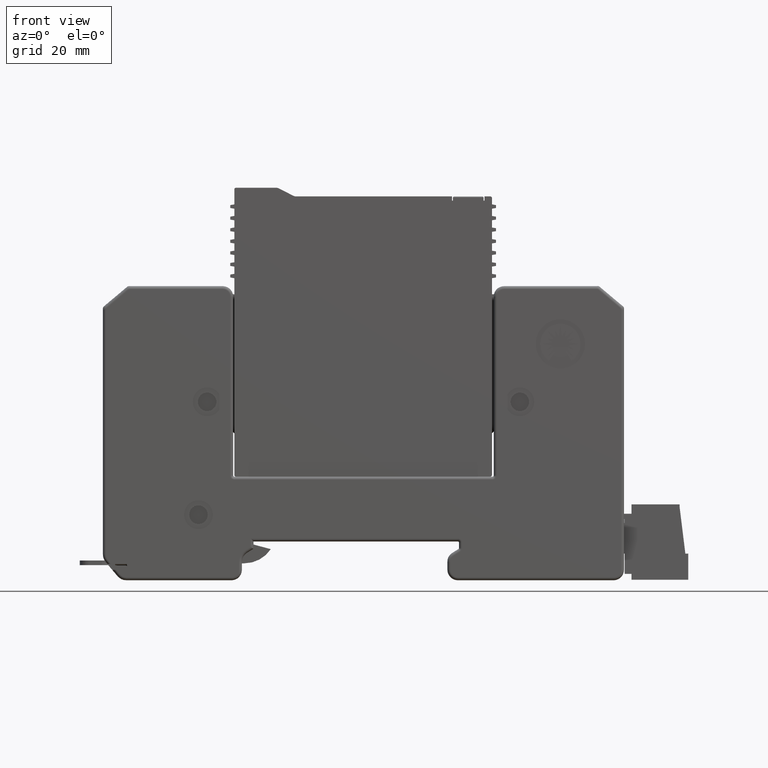
[diagram: clean part render]
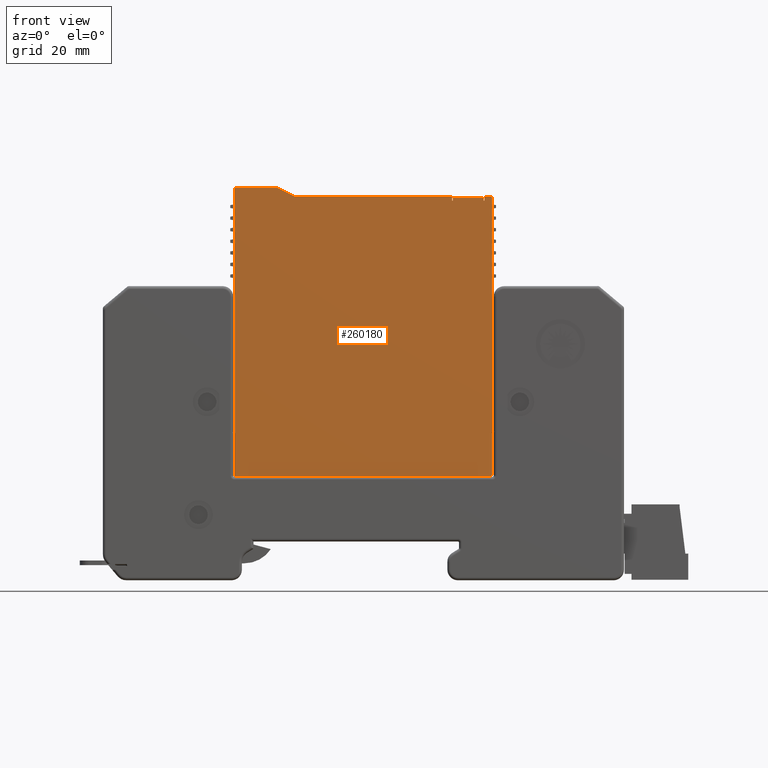
[diagram: same view with one face highlighted and labeled with its STEP entity id]
A machine part, front view. The second image highlights one B-rep face of the part: STEP entity #260180.
In plain terms, the highlighted planar face has unit normal (-0, 1, -0).
Its self-contained STEP definition (entity closure, byte-faithful):
#247920=CARTESIAN_POINT('',(-194.207462,928.111242401068,
75.4128696049984));
#247930=VERTEX_POINT('',#247920);
#247980=CARTESIAN_POINT('',(-194.207462,928.111242401068,
34.5536390928357));
#247990=DIRECTION('',(0.,0.,-1.));
#248000=VECTOR('',#247990,1.);
#248010=LINE('',#247980,#248000);
#248020=CARTESIAN_POINT('',(-194.207462,928.111242401068,
26.1128696049982));
#248030=VERTEX_POINT('',#248020);
#248040=EDGE_CURVE('',#247930,#248030,#248010,.T.);
#257270=CARTESIAN_POINT('',(-156.457462,928.111242401068,
73.9916616049981));
#257280=VERTEX_POINT('',#257270);
#257310=CARTESIAN_POINT('',(-156.457462,928.111242401068,
72.5916616049981));
#257320=DIRECTION('',(0.,6.12323399573677E-17,1.));
#257330=VECTOR('',#257320,1.);
#257340=LINE('',#257310,#257330);
#257350=CARTESIAN_POINT('',(-156.457462,928.111242401068,
73.4828696049982));
#257360=VERTEX_POINT('',#257350);
#257370=EDGE_CURVE('',#257360,#257280,#257340,.T.);
#257530=CARTESIAN_POINT('',(-211.508455648833,928.111242401068,
73.4828696049982));
#257540=DIRECTION('',(1.,1.22464658788737E-16,-1.23259516440783E-32));
#257550=VECTOR('',#257540,1.);
#257560=LINE('',#257530,#257550);
#257570=CARTESIAN_POINT('',(-156.607462,928.111242401068,
73.4828696049982));
#257580=VERTEX_POINT('',#257570);
#257590=EDGE_CURVE('',#257580,#257360,#257560,.T.);
#257790=CARTESIAN_POINT('',(-156.607462,928.111242401068,
34.5536390928357));
#257800=DIRECTION('',(0.,0.,-1.));
#257810=VECTOR('',#257800,1.);
#257820=LINE('',#257790,#257810);
#257830=CARTESIAN_POINT('',(-156.607462,928.111242401068,74.212869604998
));
#257840=VERTEX_POINT('',#257830);
#257850=EDGE_CURVE('',#257840,#257580,#257820,.T.);
#258020=CARTESIAN_POINT('',(-211.508455648833,928.111242401068,
74.2128696049977));
#258030=DIRECTION('',(-1.,-0.,-6.77715873154194E-15));
#258040=VECTOR('',#258030,1.);
#258050=LINE('',#258020,#258040);
#258060=CARTESIAN_POINT('',(-183.557462,928.111242401068,
74.2128696049978));
#258070=VERTEX_POINT('',#258060);
#258080=EDGE_CURVE('',#257840,#258070,#258050,.T.);
#258260=CARTESIAN_POINT('',(-183.557462000001,928.111242401068,
75.2628696049985));
#258270=DIRECTION('',(0.,1.,0.));
#258280=DIRECTION('',(-1.,0.,0.));
#258290=AXIS2_PLACEMENT_3D('',#258260,#258270,#258280);
#258300=CIRCLE('',#258290,1.05000000000064);
#258310=CARTESIAN_POINT('',(-184.033861128244,928.111242401068,
74.3271645923956));
#258320=VERTEX_POINT('',#258310);
#258330=EDGE_CURVE('',#258070,#258320,#258300,.T.);
#258510=CARTESIAN_POINT('',(-211.508455648833,928.111242401068,
88.3154116383822));
#258520=DIRECTION('',(-0.891147631049758,0.,0.453713455469864));
#258530=VECTOR('',#258520,1.);
#258540=LINE('',#258510,#258530);
#258550=CARTESIAN_POINT('',(-186.531062871756,928.111242401068,
75.5985746176006));
#258560=VERTEX_POINT('',#258550);
#258570=EDGE_CURVE('',#258320,#258560,#258540,.T.);
#258750=CARTESIAN_POINT('',(-187.007462,928.111242401068,
74.6628696049981));
#258760=DIRECTION('',(0.,1.,0.));
#258770=DIRECTION('',(-1.,0.,0.));
#258780=AXIS2_PLACEMENT_3D('',#258750,#258760,#258770);
#258790=CIRCLE('',#258780,1.0500000000003);
#258800=CARTESIAN_POINT('',(-187.007462,928.111242401068,
75.7128696049984));
#258810=VERTEX_POINT('',#258800);
#258820=EDGE_CURVE('',#258810,#258560,#258790,.T.);
#259000=CARTESIAN_POINT('',(-188.832462,928.111242401068,
75.7128696049983));
#259010=DIRECTION('',(-1.,-1.22464658788737E-16,-1.66533453693773E-16));
#259020=VECTOR('',#259010,1.);
#259030=LINE('',#259000,#259020);
#259040=CARTESIAN_POINT('',(-193.907462,928.111242401068,
75.7128696049985));
#259050=VERTEX_POINT('',#259040);
#259060=EDGE_CURVE('',#258810,#259050,#259030,.T.);
#259180=CARTESIAN_POINT('',(-199.170350235239,928.111242401068,
60.8816108599726));
#259190=DIRECTION('',(-1.22464658788737E-16,1.,-6.12323399573677E-17));
#259200=DIRECTION('',(-0.780975737252073,-1.33885280970231E-16,
-0.62456136433787));
#259210=AXIS2_PLACEMENT_3D('',#259180,#259190,#259200);
#259220=PLANE('',#259210);
#259230=CARTESIAN_POINT('',(-151.007462,928.111242401068,
34.5536390928357));
#259240=DIRECTION('',(0.,6.12323399573677E-17,1.));
#259250=VECTOR('',#259240,1.);
#259260=LINE('',#259230,#259250);
#259270=CARTESIAN_POINT('',(-151.007462,928.111242401068,
73.4828696049982));
#259280=VERTEX_POINT('',#259270);
#259290=CARTESIAN_POINT('',(-151.007462,928.111242401068,
74.2128696049981));
#259300=VERTEX_POINT('',#259290);
#259310=EDGE_CURVE('',#259280,#259300,#259260,.T.);
#259320=ORIENTED_EDGE('',*,*,#259310,.F.);
#259330=CARTESIAN_POINT('',(-211.508455648833,928.111242401068,
74.2128696049977));
#259340=DIRECTION('',(-1.,-0.,-6.77715873154194E-15));
#259350=VECTOR('',#259340,1.);
#259360=LINE('',#259330,#259350);
#259370=CARTESIAN_POINT('',(-150.007462,928.111242401068,
74.2128696049981));
#259380=VERTEX_POINT('',#259370);
#259390=EDGE_CURVE('',#259380,#259300,#259360,.T.);
#259400=ORIENTED_EDGE('',*,*,#259390,.T.);
#259410=CARTESIAN_POINT('',(-150.007462,928.111242401068,
73.9128696049981));
#259420=DIRECTION('',(0.,1.,0.));
#259430=DIRECTION('',(-1.,0.,0.));
#259440=AXIS2_PLACEMENT_3D('',#259410,#259420,#259430);
#259450=CIRCLE('',#259440,0.299999999999926);
#259460=CARTESIAN_POINT('',(-149.707462,928.111242401068,
73.9128696049981));
#259470=VERTEX_POINT('',#259460);
#259480=EDGE_CURVE('',#259380,#259470,#259450,.T.);
#259490=ORIENTED_EDGE('',*,*,#259480,.F.);
#259500=CARTESIAN_POINT('',(-149.707462,928.111242401068,
34.5536390928357));
#259510=DIRECTION('',(0.,0.,1.));
#259520=VECTOR('',#259510,1.);
#259530=LINE('',#259500,#259520);
#259540=CARTESIAN_POINT('',(-149.707462,928.111242401068,
26.1128696049982));
#259550=VERTEX_POINT('',#259540);
#259560=EDGE_CURVE('',#259550,#259470,#259530,.T.);
#259570=ORIENTED_EDGE('',*,*,#259560,.T.);
#259580=CARTESIAN_POINT('',(-150.007462,928.111242401068,
26.1128696049982));
#259590=DIRECTION('',(0.,1.,0.));
#259600=DIRECTION('',(-1.,0.,0.));
#259610=AXIS2_PLACEMENT_3D('',#259580,#259590,#259600);
#259620=CIRCLE('',#259610,0.299999999999983);
#259630=CARTESIAN_POINT('',(-150.007462,928.111242401068,
25.8128696049982));
#259640=VERTEX_POINT('',#259630);
#259650=EDGE_CURVE('',#259550,#259640,#259620,.T.);
#259660=ORIENTED_EDGE('',*,*,#259650,.F.);
#259670=CARTESIAN_POINT('',(-211.508455648833,928.111242401068,
25.8128696049982));
#259680=DIRECTION('',(-1.,0.,0.));
#259690=VECTOR('',#259680,1.);
#259700=LINE('',#259670,#259690);
#259710=CARTESIAN_POINT('',(-193.907462,928.111242401068,
25.8128696049982));
#259720=VERTEX_POINT('',#259710);
#259730=EDGE_CURVE('',#259640,#259720,#259700,.T.);
#259740=ORIENTED_EDGE('',*,*,#259730,.F.);
#259750=CARTESIAN_POINT('',(-193.907462,928.111242401068,
26.1128696049982));
#259760=DIRECTION('',(0.,1.,0.));
#259770=DIRECTION('',(-1.,0.,0.));
#259780=AXIS2_PLACEMENT_3D('',#259750,#259760,#259770);
#259790=CIRCLE('',#259780,0.299999999999962);
#259800=EDGE_CURVE('',#259720,#248030,#259790,.T.);
#259810=ORIENTED_EDGE('',*,*,#259800,.F.);
#259820=ORIENTED_EDGE('',*,*,#248040,.T.);
#259830=CARTESIAN_POINT('',(-193.907462,928.111242401068,
75.4128696049984));
#259840=DIRECTION('',(0.,1.,0.));
#259850=DIRECTION('',(-1.,0.,0.));
#259860=AXIS2_PLACEMENT_3D('',#259830,#259840,#259850);
#259870=CIRCLE('',#259860,0.300000000000011);
#259880=EDGE_CURVE('',#247930,#259050,#259870,.T.);
#259890=ORIENTED_EDGE('',*,*,#259880,.F.);
#259900=ORIENTED_EDGE('',*,*,#259060,.T.);
#259910=ORIENTED_EDGE('',*,*,#258820,.F.);
#259920=ORIENTED_EDGE('',*,*,#258570,.T.);
#259930=ORIENTED_EDGE('',*,*,#258330,.T.);
#259940=ORIENTED_EDGE('',*,*,#258080,.T.);
#259950=ORIENTED_EDGE('',*,*,#257850,.F.);
#259960=ORIENTED_EDGE('',*,*,#257590,.F.);
#259970=ORIENTED_EDGE('',*,*,#257370,.F.);
#259980=CARTESIAN_POINT('',(-211.508455648833,928.111242401068,
73.9916616049981));
#259990=DIRECTION('',(-1.,-1.22464658788737E-16,1.23259516440783E-32));
#260000=VECTOR('',#259990,1.);
#260010=LINE('',#259980,#260000);
#260020=CARTESIAN_POINT('',(-151.157462,928.111242401068,
73.9916616049981));
#260030=VERTEX_POINT('',#260020);
#260040=EDGE_CURVE('',#260030,#257280,#260010,.T.);
#260050=ORIENTED_EDGE('',*,*,#260040,.T.);
#260060=CARTESIAN_POINT('',(-151.157462,928.111242401068,
34.5536390928357));
#260070=DIRECTION('',(0.,-6.12323399573677E-17,-1.));
#260080=VECTOR('',#260070,1.);
#260090=LINE('',#260060,#260080);
#260100=CARTESIAN_POINT('',(-151.157462,928.111242401068,
73.4828696049982));
#260110=VERTEX_POINT('',#260100);
#260120=EDGE_CURVE('',#260030,#260110,#260090,.T.);
#260130=ORIENTED_EDGE('',*,*,#260120,.F.);
#260140=EDGE_CURVE('',#260110,#259280,#257560,.T.);
#260150=ORIENTED_EDGE('',*,*,#260140,.F.);
#260160=EDGE_LOOP('',(#260150,#260130,#260050,#259970,#259960,#259950,
#259940,#259930,#259920,#259910,#259900,#259890,#259820,#259810,#259740,
#259660,#259570,#259490,#259400,#259320));
#260170=FACE_OUTER_BOUND('',#260160,.T.);
#260180=ADVANCED_FACE('',(#260170),#259220,.F.);